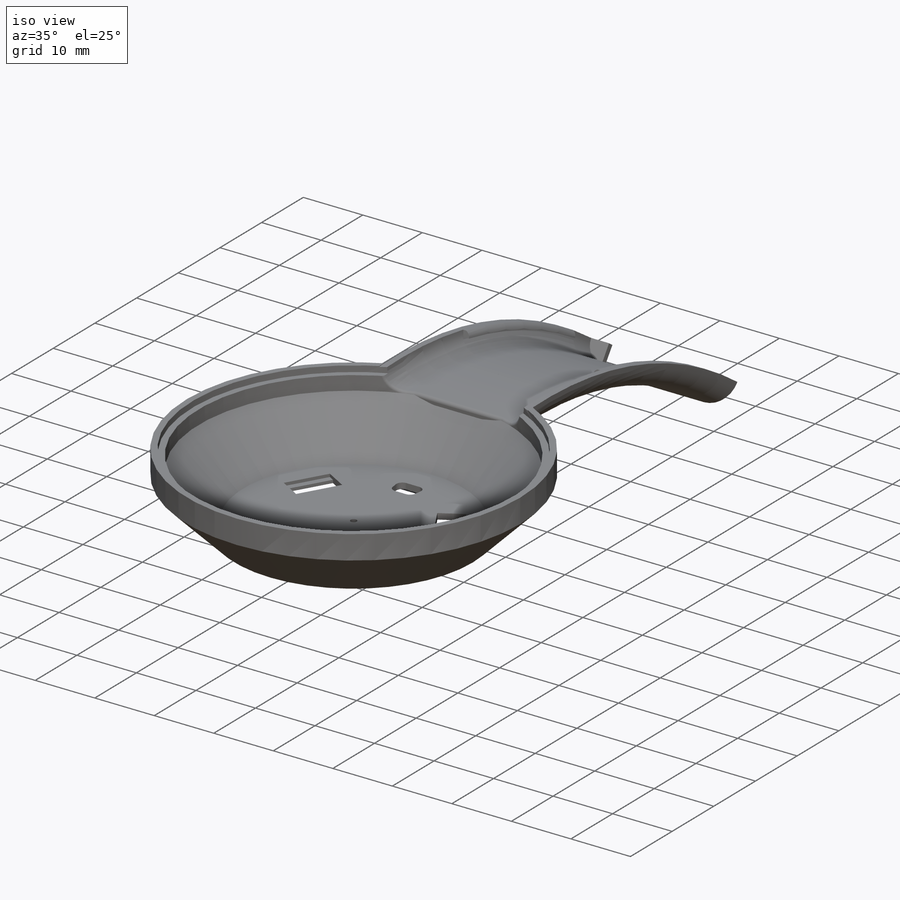
[diagram: iso view]
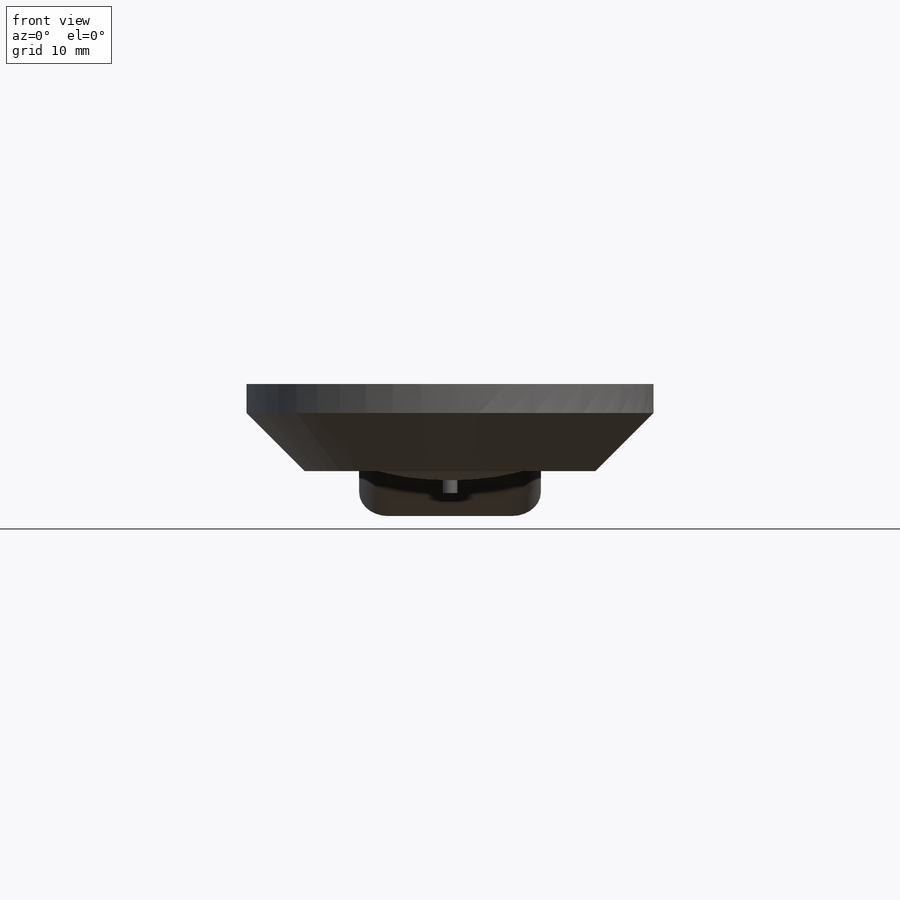
[diagram: front view]
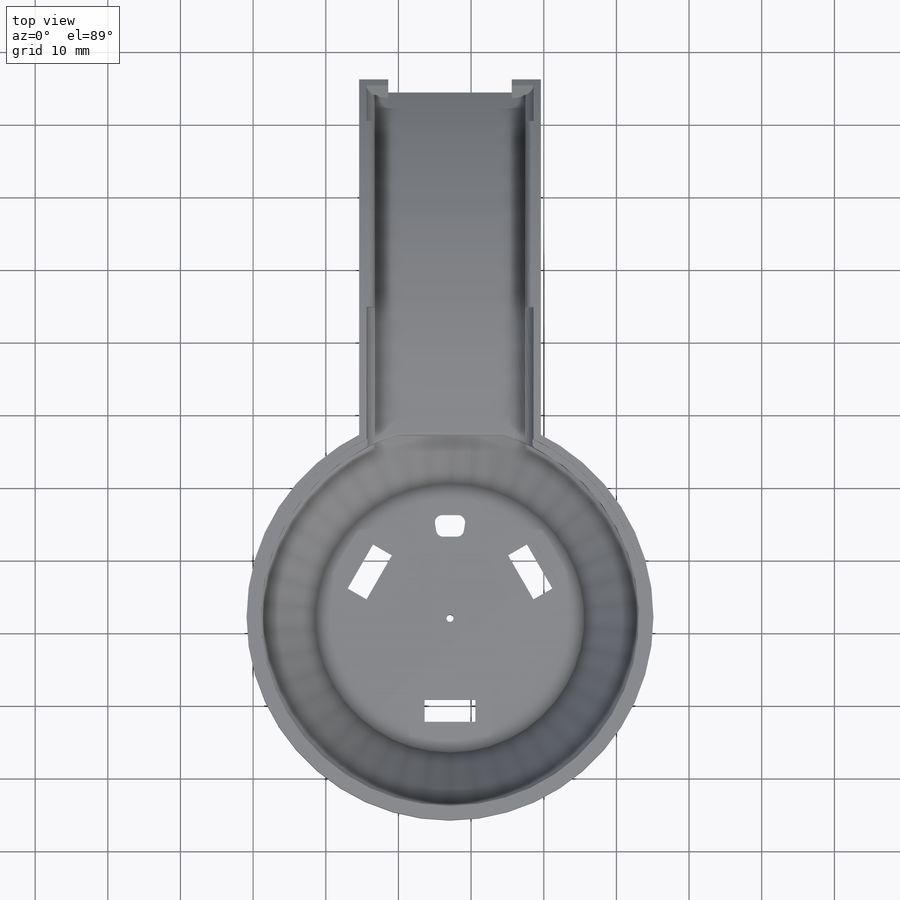
[diagram: top view]
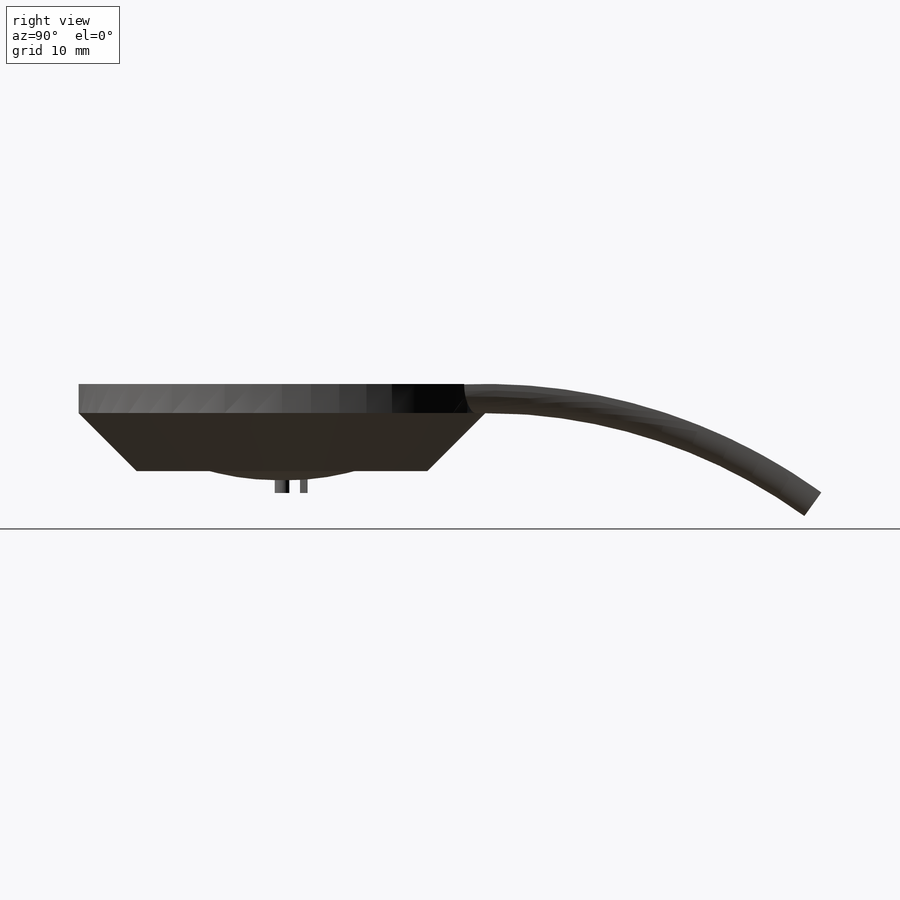
[diagram: right view]
SOLIDWORKS PART (.sldprt)
format: sldprt  version: not decoded by parser v0  size: 718,848 bytes
history: native  units: mm
features: sketch x14, plane x4, revolve x4, cut_extrude x4, cut_revolve x3, fillet x2, material x1, extrude x1 (+9 scaffold rows collapsed)
feature tree (42):
  scaffold x9  (default folders/planes/origin — collapsed)
  material  "Material <sin especificar>"
  plane  "Alzado"
  plane  "Planta"
  plane  "Vista lateral"
  sketch  "Croquis1"  dims[c1.D7=~2.27639mm c1.D12=6.0mm c1.D13=6.0mm c1.D1=25.0mm c1.D2=4.0mm c1.D3=5.0mm c1.D4=5.0mm c1.D5=4.0mm c1.D6=4.0mm c2.D7=79.0mm c2.D8=1.1mm c2.D9=1.0mm c2.D10=1.1mm c2.D11=1.0mm c2.D14=1.0mm]
  revolve  "Revolución1"  Angle=35.809862deg
  sketch  "Croquis2"  dims[D1=79.0mm]
  cut_revolve  "Cortar-Revolución1"  Angle=10.74deg
  sketch  "Croquis3"  dims[D1=79.0mm]
  cut_revolve  "Cortar-Revolución2"  Angle=5.01deg
  sketch  "Croquis5"  dims[D1=79.0mm]
  revolve  "Revolución4"  Angle=0.72deg
  sketch  "Croquis15"  dims[D1=28.0mm]
  sketch  "Croquis16"  dims[D1=28.0mm]
  plane  "Plano3"
  sketch  "Croquis17"  dims[c1.D1=28.0mm c1.D2=28.0mm c2.D1=28.0mm c2.D2=12.0mm c2.D3=20.0mm c2.D4=4.0mm c2.D5=1.0mm c2.D6=2.0mm c2.D7=2.5mm c2.D8=2.1mm c2.D9=0.5mm c2.D10=13.0mm c2.D11=1.0mm c2.D12=1.0mm]
  revolve  "Revolución5"  Angle=360deg
  sketch  "Croquis18"  dims[c1.D1=~7.598337mm c1.D3=7.0mm c1.D4=5.0mm c2.D1=~8.508204mm c3.D1=10.0deg c3.D2=9.5mm c4.D2=10.0deg c4.D5=3.5mm c5.D5=10.0deg c5.D6=3.5mm c6.D6=10.0deg]
  extrude  "Saliente-Extruir1"  Depth=3mm
  sketch  "Croquis19"  dims[c1.D1=22.5mm c1.D2=3.5mm c1.D3=3.5mm c1.D4=4.0mm c1.D5=~8.644501mm c2.D5=120.0deg c2.D6=~7.939165mm c3.D6=120.0deg c3.D7=3.5mm c3.D8=3.5mm c3.D9=4.0mm c3.D10=4.0mm c3.D11=4.0mm c3.D12=4.0mm c3.D13=3.5mm c3.D14=3.5mm]
  cut_extrude  "Cortar-Extruir1"  Depth=0.5mm
  sketch  "Croquis20"  dims[D1=1.0mm D2=1.0mm D3=1.0mm]
  cut_extrude  "Cortar-Extruir2"  Depth=0.5mm
  sketch  "Croquis21"  dims[c1.D1=~14.249999mm c2.D1=9.0deg c2.D2=~14.249999mm c3.D2=9.0deg]
  cut_extrude  "Cortar-Extruir3"  Depth=1mm
  fillet  "Redondeo1"  Radius=1mm
  sketch  "Croquis22"  dims[D1=79.0mm]
  revolve  "Revolución6"  Angle=2.3deg
  sketch  "Croquis23"  dims[D1=25.0mm D2=12.5mm D3=4.0mm D4=1.0mm D5=1.0mm D6=1.0mm D7=4.0mm D8=4.0mm D9=79.0mm]
  cut_revolve  "Cortar-Revolución4"  Angle=6deg
  fillet  "Redondeo3"  Radius=0.5mm
  sketch  "Croquis27"  dims[D1=~24.200879mm]
  cut_extrude  "Cortar-Extruir5"  Depth=1mm
decode coverage: 28 of 28 modeling features carry decoded parameters
note: ~ marks probable driven/reference dimensions
note: suppression state not decoded; provenance and decode notes live in map.json
